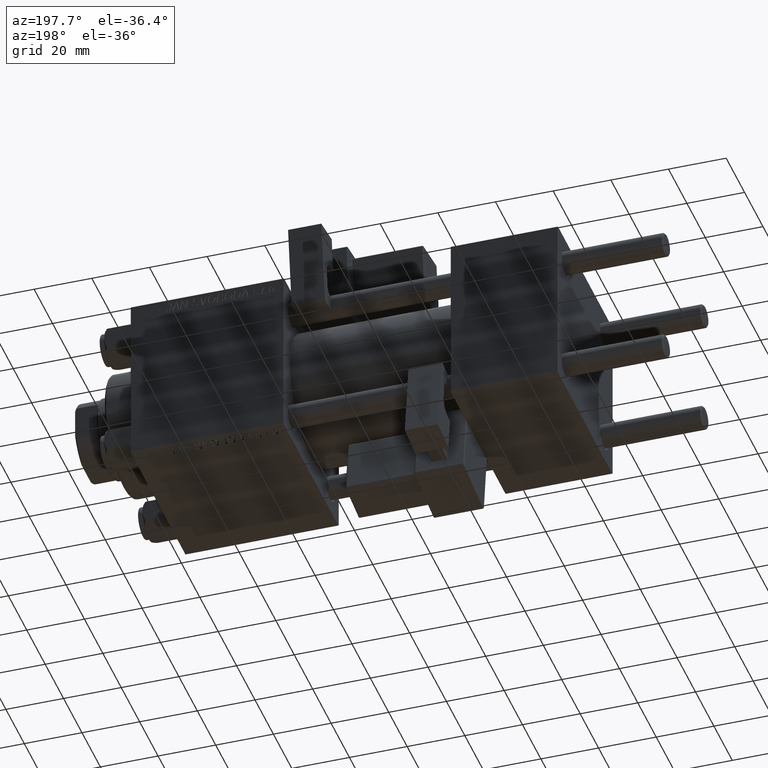
[diagram: clean part render]
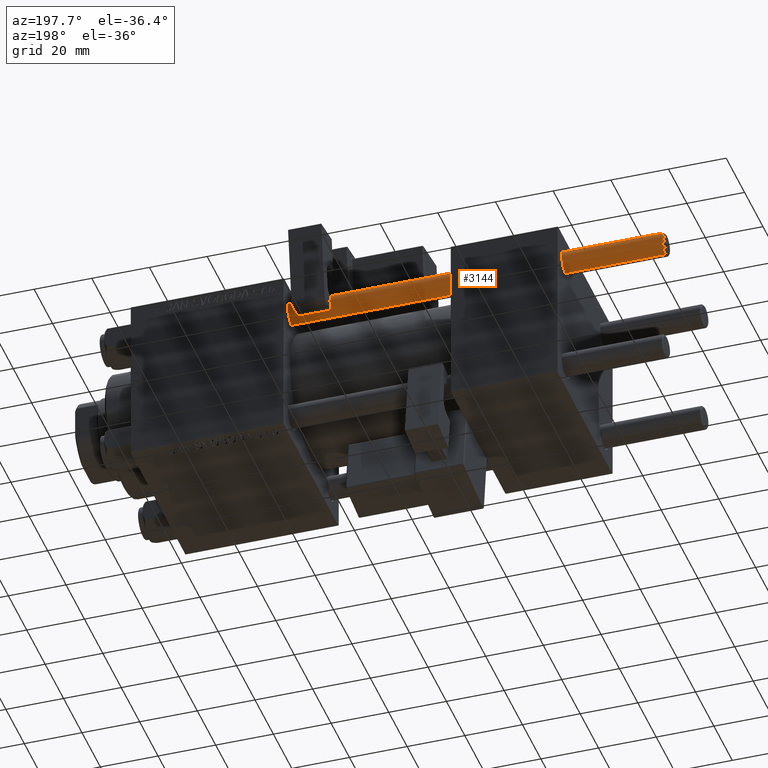
[diagram: same view with one face highlighted and labeled with its STEP entity id]
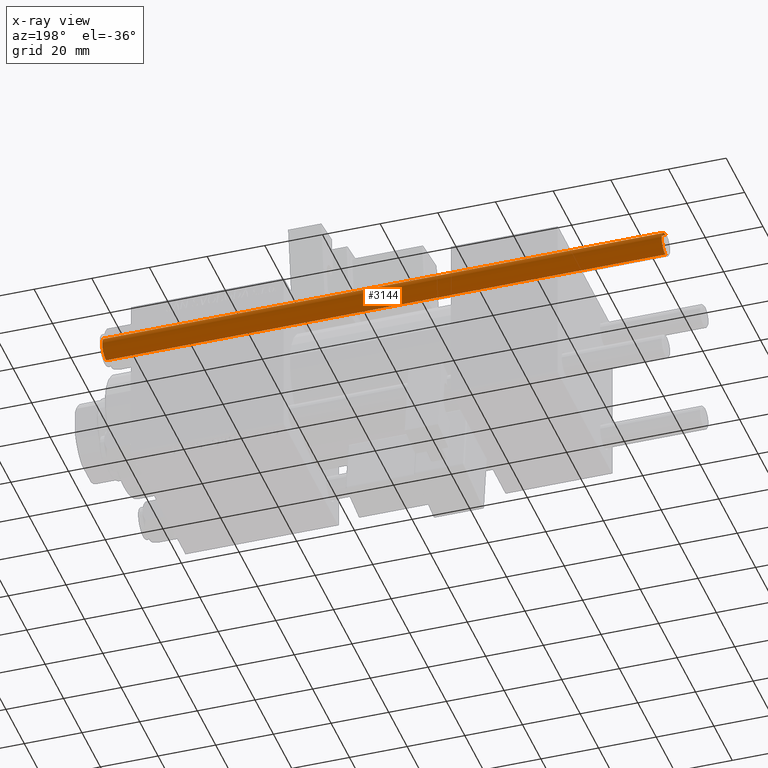
[diagram: x-ray of the same camera — body ghosted, the highlighted face saturated]
A machine part, auxiliary view. The second image highlights one B-rep face of the part: STEP entity #3144.
The next image is the same camera in x-ray: the body ghosted, the highlighted face saturated — about 0% of this face is hidden behind the body in this view.
In plain terms, the highlighted cylindrical surface (edge-blend (fillet) strip) has radius 4 mm, axis along (-1, -0, -0).
Its self-contained STEP definition (entity closure, byte-faithful):
#1657 = ORIENTED_EDGE ( 'NONE', *, *, #21870, .T. ) ;
#3144 = ADVANCED_FACE ( 'NONE', ( #10399 ), #20057, .T. ) ;
#3383 = EDGE_CURVE ( 'NONE', #44219, #35991, #35045, .T. ) ;
#6525 = EDGE_CURVE ( 'NONE', #24802, #40922, #20879, .T. ) ;
#9742 = LINE ( 'NONE', #18149, #9822 ) ;
#9822 = VECTOR ( 'NONE', #29221, 1000.000000000000000 ) ;
#10284 = CARTESIAN_POINT ( 'NONE',  ( 0.000000000000000000, 0.000000000000000000, 0.5000000000000004441 ) ) ;
#10399 = FACE_OUTER_BOUND ( 'NONE', #13591, .T. ) ;
#11021 = LINE ( 'NONE', #42111, #42883 ) ;
#12621 = CARTESIAN_POINT ( 'NONE',  ( -4.000000000000000000, 0.000000000000000000, 0.5000000000000004441 ) ) ;
#13591 = EDGE_LOOP ( 'NONE', ( #25769, #1657, #16574, #19687 ) ) ;
#14868 = DIRECTION ( 'NONE',  ( -1.000000000000000000, 0.000000000000000000, 0.000000000000000000 ) ) ;
#16574 = ORIENTED_EDGE ( 'NONE', *, *, #3383, .T. ) ;
#18149 = CARTESIAN_POINT ( 'NONE',  ( -4.000000000000000000, 0.000000000000000000, 195.0000000000000000 ) ) ;
#19178 = AXIS2_PLACEMENT_3D ( 'NONE', #33062, #49121, #29620 ) ;
#19687 = ORIENTED_EDGE ( 'NONE', *, *, #46959, .F. ) ;
#20057 = CYLINDRICAL_SURFACE ( 'NONE', #46819, 4.000000000000000000 ) ;
#20879 = CIRCLE ( 'NONE', #19178, 4.000000000000000000 ) ;
#21870 = EDGE_CURVE ( 'NONE', #40922, #44219, #11021, .T. ) ;
#24802 = VERTEX_POINT ( 'NONE', #32484 ) ;
#25769 = ORIENTED_EDGE ( 'NONE', *, *, #6525, .T. ) ;
#29221 = DIRECTION ( 'NONE',  ( -0.000000000000000000, -0.000000000000000000, -1.000000000000000000 ) ) ;
#29620 = DIRECTION ( 'NONE',  ( 1.000000000000000000, 0.000000000000000000, 0.000000000000000000 ) ) ;
#32484 = CARTESIAN_POINT ( 'NONE',  ( -4.000000000000000000, 0.000000000000000000, 194.5000000000000568 ) ) ;
#32538 = AXIS2_PLACEMENT_3D ( 'NONE', #10284, #38193, #46091 ) ;
#33062 = CARTESIAN_POINT ( 'NONE',  ( 0.000000000000000000, 0.000000000000000000, 194.5000000000000568 ) ) ;
#35045 = CIRCLE ( 'NONE', #32538, 4.000000000000000000 ) ;
#35991 = VERTEX_POINT ( 'NONE', #12621 ) ;
#37004 = CARTESIAN_POINT ( 'NONE',  ( 4.000000000000000000, 4.898587196589412829E-16, 0.5000000000000004441 ) ) ;
#38193 = DIRECTION ( 'NONE',  ( -0.000000000000000000, -0.000000000000000000, 1.000000000000000000 ) ) ;
#39206 = CARTESIAN_POINT ( 'NONE',  ( 4.000000000000000000, 4.898587196589412829E-16, 194.5000000000000568 ) ) ;
#40922 = VERTEX_POINT ( 'NONE', #39206 ) ;
#42111 = CARTESIAN_POINT ( 'NONE',  ( 4.000000000000000000, 4.898587196589412829E-16, 195.0000000000000000 ) ) ;
#42781 = CARTESIAN_POINT ( 'NONE',  ( 0.000000000000000000, 0.000000000000000000, 195.0000000000000000 ) ) ;
#42883 = VECTOR ( 'NONE', #46312, 1000.000000000000000 ) ;
#44219 = VERTEX_POINT ( 'NONE', #37004 ) ;
#46091 = DIRECTION ( 'NONE',  ( 1.000000000000000000, 0.000000000000000000, 0.000000000000000000 ) ) ;
#46312 = DIRECTION ( 'NONE',  ( -0.000000000000000000, -0.000000000000000000, -1.000000000000000000 ) ) ;
#46819 = AXIS2_PLACEMENT_3D ( 'NONE', #42781, #48224, #14868 ) ;
#46959 = EDGE_CURVE ( 'NONE', #24802, #35991, #9742, .T. ) ;
#48224 = DIRECTION ( 'NONE',  ( -0.000000000000000000, -0.000000000000000000, -1.000000000000000000 ) ) ;
#49121 = DIRECTION ( 'NONE',  ( 0.000000000000000000, 0.000000000000000000, -1.000000000000000000 ) ) ;